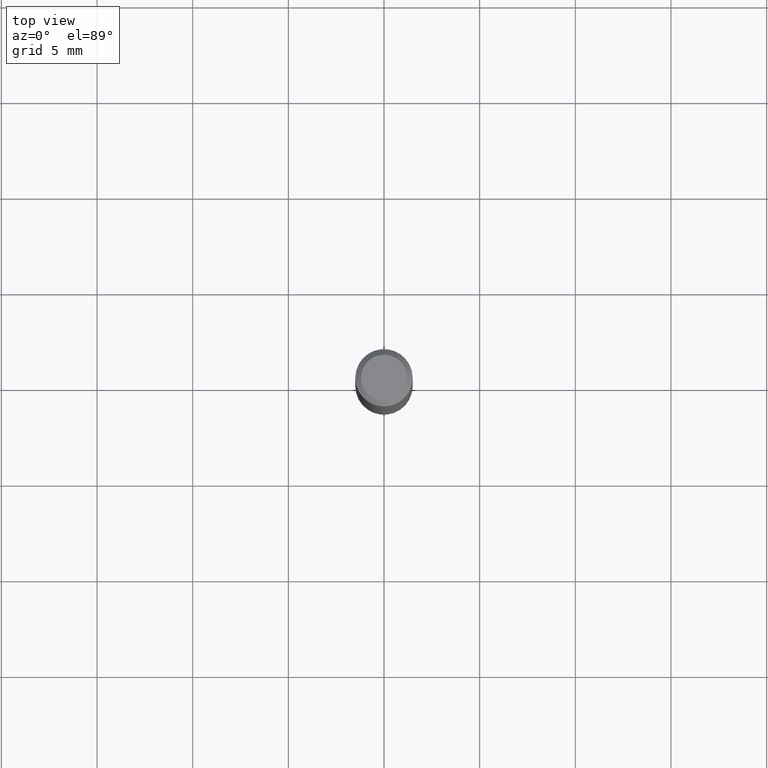
[diagram: clean part render]
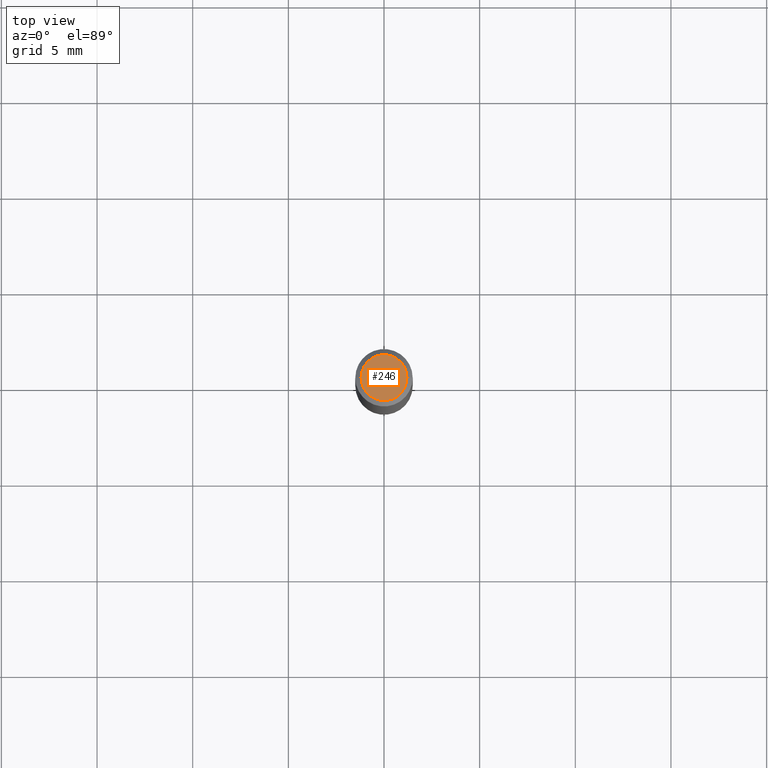
[diagram: same view with one face highlighted and labeled with its STEP entity id]
A machine part, top view. The second image highlights one B-rep face of the part: STEP entity #246.
In plain terms, the highlighted planar face has unit normal (0, -0, -1).
Its self-contained STEP definition (entity closure, byte-faithful):
#8 = CARTESIAN_POINT ( 'NONE',  ( 8.265746106709734507E-48, -1.180129479067563789E-33, -3.380025165646692144E-19 ) ) ;
#28 = CARTESIAN_POINT ( 'NONE',  ( 8.265746106709734507E-48, -1.180129479067563789E-33, -3.380025165646692144E-19 ) ) ;
#29 = EDGE_CURVE ( 'NONE', #294, #69, #119, .T. ) ;
#69 = VERTEX_POINT ( 'NONE', #455 ) ;
#119 = CIRCLE ( 'NONE', #423, 0.04724000000000000421 ) ;
#133 = PLANE ( 'NONE',  #255 ) ;
#165 = CARTESIAN_POINT ( 'NONE',  ( -0.04724000000000000421, 3.504923541997677355E-16, -3.380025165670481712E-19 ) ) ;
#190 = EDGE_LOOP ( 'NONE', ( #375, #361 ) ) ;
#208 = FACE_OUTER_BOUND ( 'NONE', #190, .T. ) ;
#246 = ADVANCED_FACE ( 'NONE', ( #208 ), #133, .F. ) ;
#255 = AXIS2_PLACEMENT_3D ( 'NONE', #398, #428, #394 ) ;
#294 = VERTEX_POINT ( 'NONE', #165 ) ;
#350 = EDGE_CURVE ( 'NONE', #69, #294, #490, .T. ) ;
#361 = ORIENTED_EDGE ( 'NONE', *, *, #350, .T. ) ;
#368 = DIRECTION ( 'NONE',  ( 1.000000000000000000, -6.982962677686266711E-15, 4.876185090822587894E-29 ) ) ;
#375 = ORIENTED_EDGE ( 'NONE', *, *, #29, .T. ) ;
#378 = DIRECTION ( 'NONE',  ( 1.000000000000000000, -6.982962677686266711E-15, 4.876185090822587894E-29 ) ) ;
#382 = DIRECTION ( 'NONE',  ( -2.445468806185136597E-29, 3.491481338843145583E-15, 1.000000000000000000 ) ) ;
#394 = DIRECTION ( 'NONE',  ( -1.000000000000000000, 6.982962677686265922E-15, -4.876176775795935793E-29 ) ) ;
#398 = CARTESIAN_POINT ( 'NONE',  ( 4.132873053354867254E-48, -5.900647395337818946E-34, -1.690012582823346072E-19 ) ) ;
#423 = AXIS2_PLACEMENT_3D ( 'NONE', #8, #382, #378 ) ;
#425 = AXIS2_PLACEMENT_3D ( 'NONE', #28, #439, #368 ) ;
#428 = DIRECTION ( 'NONE',  ( 2.438088387897960049E-29, -3.491481338843145188E-15, -1.000000000000000000 ) ) ;
#439 = DIRECTION ( 'NONE',  ( -2.445468806185136597E-29, 3.491481338843145583E-15, 1.000000000000000000 ) ) ;
#455 = CARTESIAN_POINT ( 'NONE',  ( 0.04724000000000000421, -3.852183633974369345E-16, -3.380025165621689721E-19 ) ) ;
#490 = CIRCLE ( 'NONE', #425, 0.04724000000000000421 ) ;